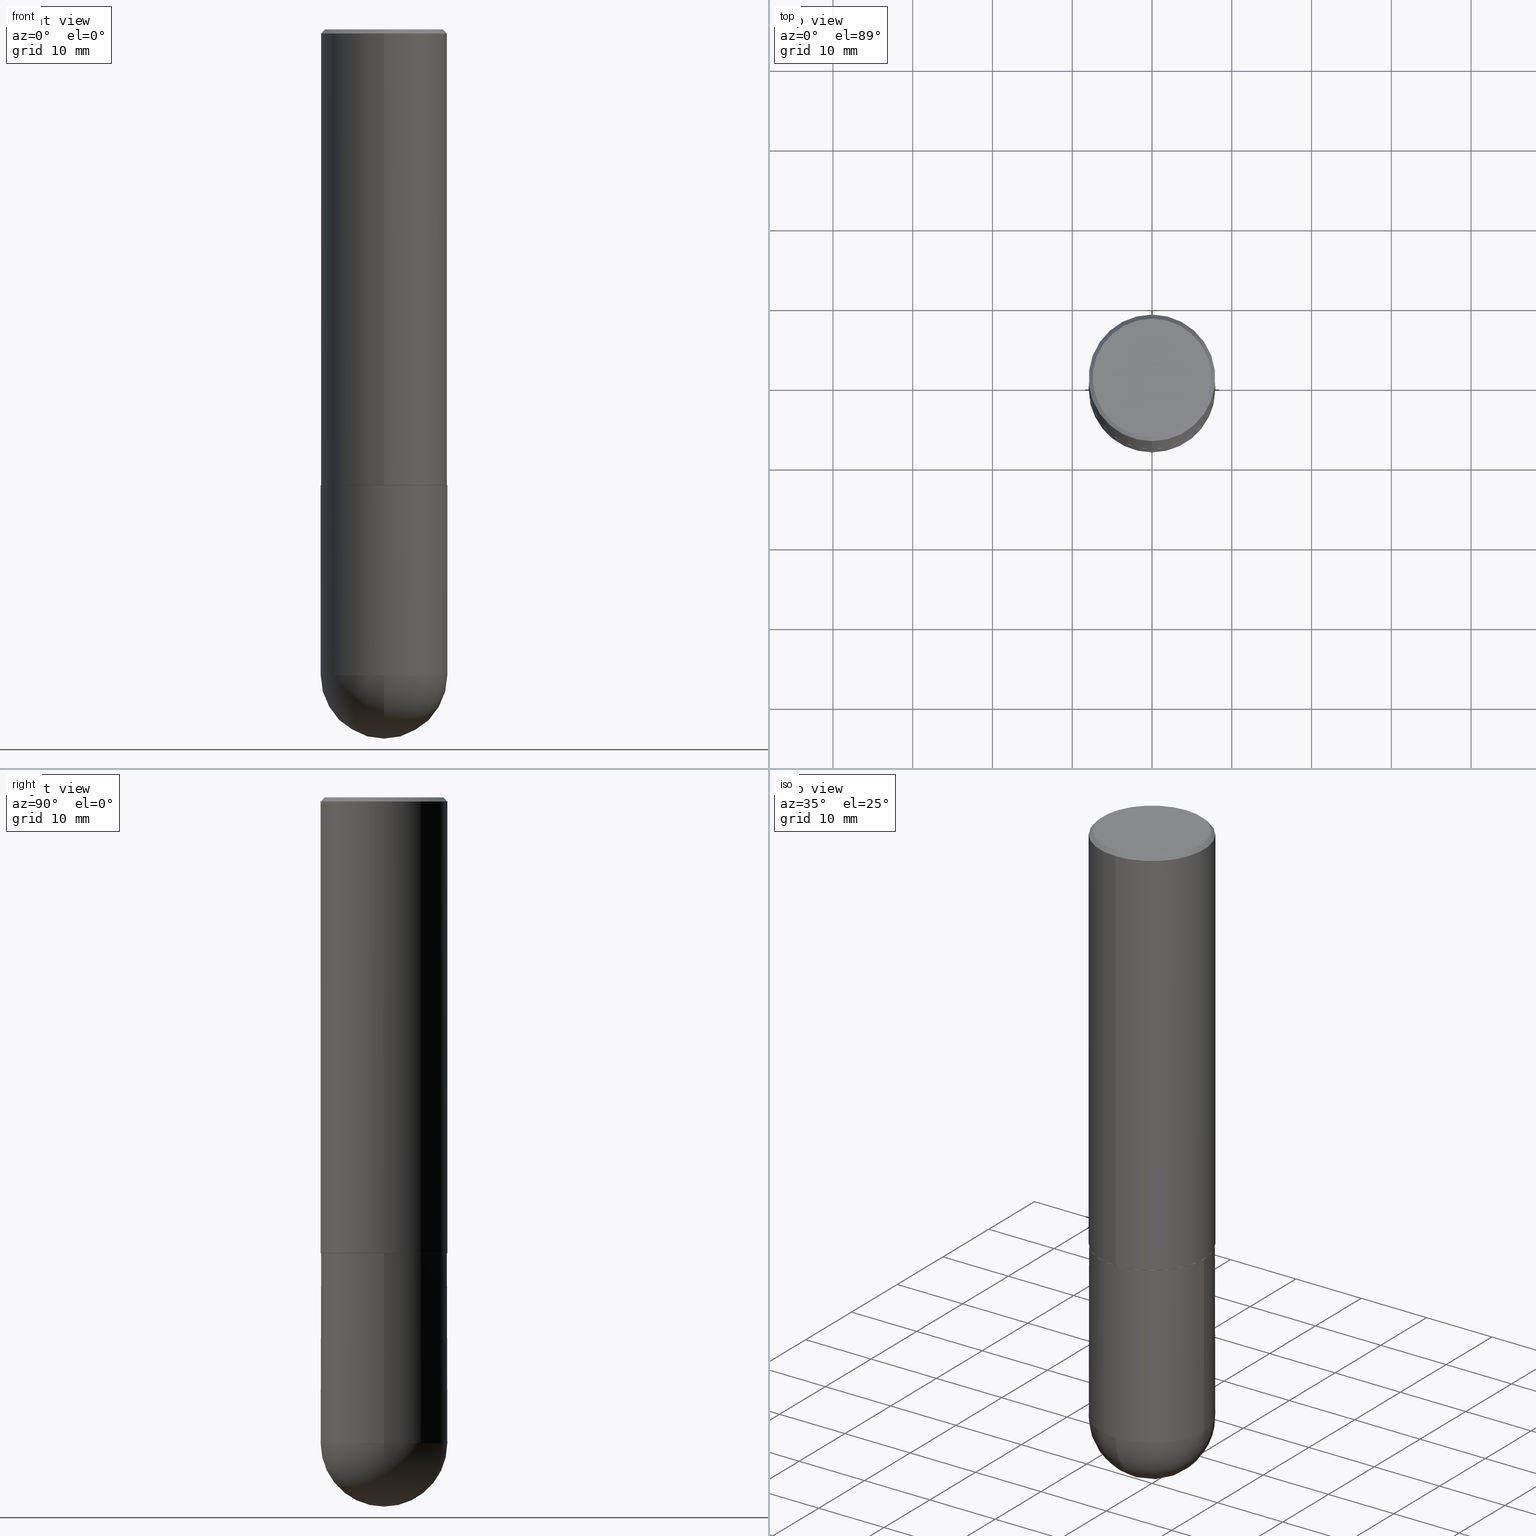
[diagram: canonical four-view strip — front | top / right | iso, engineering-drawing reading convention]
A machine part, canonical four-view strip (front | top / right | iso — engineering-drawing reading convention). The complete STEP part file that produces these views, byte-faithful:
ISO-10303-21;
HEADER;
FILE_DESCRIPTION (( 'STEP AP203' ),
    '1' );
FILE_NAME ('36350.STEP',
    '2024-02-21T18:55:58',
    ( '' ),
    ( '' ),
    'SwSTEP 2.0',
    'SolidWorks 2023',
    '' );
FILE_SCHEMA (( 'CONFIG_CONTROL_DESIGN' ));
ENDSEC;

DATA;
#1 = CARTESIAN_POINT ( 'NONE',  ( -2.175192874099216718E-15, -0.3115000000000078817, -2.249999999999999112 ) ) ;
#2 = DIRECTION ( 'NONE',  ( -6.982962677686265922E-15, -1.000000000000000000, 3.491020497515737366E-15 ) ) ;
#3 = DIRECTION ( 'NONE',  ( 1.000000000000000000, -6.982962677686269077E-15, 0.000000000000000000 ) ) ;
#4 = CONICAL_SURFACE ( 'NONE', #109, 0.3125000000000001665, 0.7853981633974469467 ) ;
#5 = EDGE_CURVE ( 'NONE', #403, #271, #26, .T. ) ;
#6 = DIRECTION ( 'NONE',  ( 2.438088387897960049E-29, -3.491481338843145188E-15, -1.000000000000000000 ) ) ;
#7 = CARTESIAN_POINT ( 'NONE',  ( 7.463812041801236655E-29, -1.160327913570257494E-14, -3.187500000000000000 ) ) ;
#8 = EDGE_LOOP ( 'NONE', ( #281, #45, #245, #247 ) ) ;
#9 = SECURITY_CLASSIFICATION_LEVEL ( 'unclassified' ) ;
#10 = LOCAL_TIME ( 13, 55, 58.00000000000000000, #306 ) ;
#11 = FACE_OUTER_BOUND ( 'NONE', #337, .T. ) ;
#12 = ADVANCED_BREP_SHAPE_REPRESENTATION ( '36350', ( #28, #159, #340 ), #73 ) ;
#13 = APPLICATION_PROTOCOL_DEFINITION ( 'international standard', 'config_control_design', 1994, #161 ) ;
#14 = ORIENTED_EDGE ( 'NONE', *, *, #176, .F. ) ;
#15 = CALENDAR_DATE ( 2024, 21, 2 ) ;
#16 = ORIENTED_EDGE ( 'NONE', *, *, #260, .T. ) ;
#17 = EDGE_CURVE ( 'NONE', #136, #217, #318, .T. ) ;
#18 = PERSON_AND_ORGANIZATION ( #59, #48 ) ;
#19 = VECTOR ( 'NONE', #320, 39.37007874015748143 ) ;
#20 = CC_DESIGN_SECURITY_CLASSIFICATION ( #197, ( #285 ) ) ;
#21 = DATE_AND_TIME ( #55, #90 ) ;
#22 = DIRECTION ( 'NONE',  ( 2.445790609964098896E-29, -3.491020497515737760E-15, -1.000000000000000000 ) ) ;
#23 = DIRECTION ( 'NONE',  ( -6.982962677686265133E-15, -1.000000000000000000, 3.496765431890254947E-15 ) ) ;
#24 = ADVANCED_FACE ( 'NONE', ( #273 ), #123, .T. ) ;
#25 = DIRECTION ( 'NONE',  ( -2.445790609964098896E-29, 3.491020497515737760E-15, 1.000000000000000000 ) ) ;
#26 = CIRCLE ( 'NONE', #283, 0.3125000000000002776 ) ;
#27 = CIRCLE ( 'NONE', #239, 0.3125000000000000000 ) ;
#28 = MANIFOLD_SOLID_BREP ( 'Body-Move/Copy2[1]', #212 ) ;
#29 = DIRECTION ( 'NONE',  ( -4.937700262164378437E-15, -0.7071067811865208164, 0.7071067811865739960 ) ) ;
#30 = DIRECTION ( 'NONE',  ( -6.982962677686265922E-15, -1.000000000000000000, 3.496765431890253764E-15 ) ) ;
#31 = CARTESIAN_POINT ( 'NONE',  ( 6.296900960775503853E-46, -8.987936348817900663E-32, -2.574587102886920740E-17 ) ) ;
#32 = DIRECTION ( 'NONE',  ( 1.000000000000000000, -6.982962677686269077E-15, 0.000000000000000000 ) ) ;
#33 = PLANE ( 'NONE',  #57 ) ;
#34 = ORIENTED_EDGE ( 'NONE', *, *, #61, .T. ) ;
#35 = PLANE ( 'NONE',  #352 ) ;
#36 = ORIENTED_EDGE ( 'NONE', *, *, #295, .T. ) ;
#37 = CIRCLE ( 'NONE', #95, 0.3125000000000002776 ) ;
#38 = AXIS2_PLACEMENT_3D ( 'NONE', #172, #361, #32 ) ;
#39 = FACE_OUTER_BOUND ( 'NONE', #369, .T. ) ;
#40 = VERTEX_POINT ( 'NONE', #49 ) ;
#41 = UNCERTAINTY_MEASURE_WITH_UNIT (LENGTH_MEASURE( 1.000000000000000082E-05 ), #240, 'distance_accuracy_value', 'NONE');
#42 =( LENGTH_UNIT ( ) NAMED_UNIT ( * ) SI_UNIT ( $, .METRE. ) );
#43 = ORIENTED_EDGE ( 'NONE', *, *, #5, .T. ) ;
#44 = EDGE_CURVE ( 'NONE', #201, #393, #371, .T. ) ;
#45 = ORIENTED_EDGE ( 'NONE', *, *, #353, .T. ) ;
#46 = VECTOR ( 'NONE', #29, 39.37007874015748854 ) ;
#47 = CC_DESIGN_APPROVAL ( #362, ( #285 ) ) ;
#48 = ORGANIZATION ( 'UNSPECIFIED', 'UNSPECIFIED', '' ) ;
#49 = CARTESIAN_POINT ( 'NONE',  ( -0.3125000000000000000, -7.272018840729490833E-15, -3.187500000000000000 ) ) ;
#50 = COORDINATED_UNIVERSAL_TIME_OFFSET ( 5, 0, .BEHIND. ) ;
#51 = FACE_OUTER_BOUND ( 'NONE', #266, .T. ) ;
#52 = APPROVAL_ROLE ( '' ) ;
#53 = ADVANCED_FACE ( 'NONE', ( #51 ), #4, .T. ) ;
#54 = EDGE_LOOP ( 'NONE', ( #301, #405, #363, #215 ) ) ;
#55 = CALENDAR_DATE ( 2024, 21, 2 ) ;
#56 = CLOSED_SHELL ( 'NONE', ( #93, #401, #53, #89, #264, #169, #357, #350 ) ) ;
#57 = AXIS2_PLACEMENT_3D ( 'NONE', #171, #269, #2 ) ;
#58 = VERTEX_POINT ( 'NONE', #125 ) ;
#59 = PERSON ( 'UNSPECIFIED', 'UNSPECIFIED', 'UNSPECIFIED', ('UNSPECIFIED'), ('UNSPECIFIED'), ('UNSPECIFIED') ) ;
#60 = DIRECTION ( 'NONE',  ( -6.982962677686265922E-15, -1.000000000000000000, 3.496765431890253764E-15 ) ) ;
#61 = EDGE_CURVE ( 'NONE', #271, #40, #64, .T. ) ;
#62 = DIRECTION ( 'NONE',  ( -6.982962677686265922E-15, -1.000000000000000000, 3.507991003100177457E-15 ) ) ;
#63 = DIRECTION ( 'NONE',  ( -6.982962677686265922E-15, -1.000000000000000000, 3.491020497515737760E-15 ) ) ;
#64 = CIRCLE ( 'NONE', #86, 0.3125000000000000000 ) ;
#65 = CARTESIAN_POINT ( 'NONE',  ( -2.182175836776905099E-15, -0.3125000000000081601, -2.248999999999998778 ) ) ;
#66 = CARTESIAN_POINT ( 'NONE',  ( 5.503028872419222936E-29, -7.854796119410410552E-15, -2.250000000000000000 ) ) ;
#67 = DIRECTION ( 'NONE',  ( -2.445790609964098896E-29, 3.491020497515737760E-15, 1.000000000000000000 ) ) ;
#68 = VECTOR ( 'NONE', #98, 39.37007874015748143 ) ;
#69 = CARTESIAN_POINT ( 'NONE',  ( 2.220446049250314264E-15, 0.3125000000000002220, -1.090943905473668790E-15 ) ) ;
#70 = FACE_OUTER_BOUND ( 'NONE', #72, .T. ) ;
#71 = DIRECTION ( 'NONE',  ( -1.000000000000000000, 6.982962677686265922E-15, -4.876176775795935793E-29 ) ) ;
#72 = EDGE_LOOP ( 'NONE', ( #14, #146, #36, #158, #101 ) ) ;
#73 =( GEOMETRIC_REPRESENTATION_CONTEXT ( 3 ) GLOBAL_UNCERTAINTY_ASSIGNED_CONTEXT ( ( #41 ) ) GLOBAL_UNIT_ASSIGNED_CONTEXT ( ( #240, #152, #342 ) ) REPRESENTATION_CONTEXT ( 'NONE', 'WORKASPACE' ) );
#74 = CYLINDRICAL_SURFACE ( 'NONE', #255, 0.3125000000000002220 ) ;
#75 = EDGE_CURVE ( 'NONE', #121, #58, #270, .T. ) ;
#76 = ORIENTED_EDGE ( 'NONE', *, *, #44, .F. ) ;
#77 = DATE_AND_TIME ( #280, #10 ) ;
#78 = ORIENTED_EDGE ( 'NONE', *, *, #219, .F. ) ;
#79 = APPROVAL_PERSON_ORGANIZATION ( #375, #191, #314 ) ;
#80 = PERSON_AND_ORGANIZATION ( #59, #48 ) ;
#81 = VERTEX_POINT ( 'NONE', #190 ) ;
#82 = DATE_TIME_ROLE ( 'classification_date' ) ;
#83 = EDGE_LOOP ( 'NONE', ( #34, #175, #332, #310, #242 ) ) ;
#84 = PERSON_AND_ORGANIZATION ( #59, #48 ) ;
#85 = CARTESIAN_POINT ( 'NONE',  ( 7.463812041801236655E-29, -1.160327913570257494E-14, -3.187500000000000000 ) ) ;
#86 = AXIS2_PLACEMENT_3D ( 'NONE', #88, #272, #394 ) ;
#87 = LOCAL_TIME ( 13, 55, 58.00000000000000000, #50 ) ;
#88 = CARTESIAN_POINT ( 'NONE',  ( 7.794931819715121781E-29, -1.112909676756252622E-14, -3.187500000000000000 ) ) ;
#89 = ADVANCED_FACE ( 'NONE', ( #11 ), #100, .T. ) ;
#90 = LOCAL_TIME ( 13, 55, 58.00000000000000000, #185 ) ;
#91 = DIRECTION ( 'NONE',  ( 5.024295867787889629E-15, 0.7071067811865257013, 0.7071067811865691111 ) ) ;
#92 = CARTESIAN_POINT ( 'NONE',  ( 2.216893335571567797E-15, 0.3114999999999921720, -2.250000000000001332 ) ) ;
#93 = ADVANCED_FACE ( 'NONE', ( #406 ), #118, .T. ) ;
#94 = CARTESIAN_POINT ( 'NONE',  ( 7.794931819715121781E-29, -1.112909676756252622E-14, -3.187500000000000000 ) ) ;
#95 = AXIS2_PLACEMENT_3D ( 'NONE', #196, #349, #30 ) ;
#96 = DIRECTION ( 'NONE',  ( -6.982962677686265922E-15, -1.000000000000000000, 3.507991003100177457E-15 ) ) ;
#97 = PRODUCT ( '36350', '36350', '', ( #397 ) ) ;
#98 = DIRECTION ( 'NONE',  ( -2.445790609964098896E-29, 3.491020497515737366E-15, 1.000000000000000000 ) ) ;
#99 = CARTESIAN_POINT ( 'NONE',  ( -0.3125000000000000000, -7.272018840729487678E-15, -2.249999999999999556 ) ) ;
#100 = CONICAL_SURFACE ( 'NONE', #339, 0.3125000000000001665, 0.7853981633974469467 ) ;
#101 = ORIENTED_EDGE ( 'NONE', *, *, #229, .F. ) ;
#102 = AXIS2_PLACEMENT_3D ( 'NONE', #31, #131, #252 ) ;
#103 = CYLINDRICAL_SURFACE ( 'NONE', #148, 0.3125000000000000000 ) ;
#104 = ORIENTED_EDGE ( 'NONE', *, *, #132, .T. ) ;
#105 = DIRECTION ( 'NONE',  ( -1.000000000000000000, 6.982962677686265922E-15, -4.883557194083112901E-29 ) ) ;
#106 = EDGE_LOOP ( 'NONE', ( #360, #153 ) ) ;
#107 = EDGE_CURVE ( 'NONE', #330, #121, #354, .T. ) ;
#108 = DIRECTION ( 'NONE',  ( -6.982962677686265922E-15, -1.000000000000000000, 3.491020497515737760E-15 ) ) ;
#109 = AXIS2_PLACEMENT_3D ( 'NONE', #275, #22, #400 ) ;
#110 = CIRCLE ( 'NONE', #327, 0.3125000000000000000 ) ;
#111 = LENGTH_MEASURE_WITH_UNIT ( LENGTH_MEASURE( 0.02539999999999999897 ), #42 );
#112 = DIRECTION ( 'NONE',  ( 0.000000000000000000, 0.000000000000000000, 1.000000000000000000 ) ) ;
#113 = ORIENTED_EDGE ( 'NONE', *, *, #75, .F. ) ;
#114 = CC_DESIGN_PERSON_AND_ORGANIZATION_ASSIGNMENT ( #338, #246, ( #285 ) ) ;
#115 = APPROVAL_ROLE ( '' ) ;
#116 = EDGE_LOOP ( 'NONE', ( #184, #104, #186, #76 ) ) ;
#117 = EDGE_CURVE ( 'NONE', #241, #58, #165, .T. ) ;
#118 = CONICAL_SURFACE ( 'NONE', #398, 0.3114999999999999991, 0.7853981633974141952 ) ;
#119 = AXIS2_PLACEMENT_3D ( 'NONE', #359, #198, #231 ) ;
#120 = PERSON_AND_ORGANIZATION_ROLE ( 'creator' ) ;
#121 = VERTEX_POINT ( 'NONE', #65 ) ;
#122 = APPROVAL_STATUS ( 'not_yet_approved' ) ;
#123 = SPHERICAL_SURFACE ( 'NONE', #232, 0.3125000000000002776 ) ;
#124 = APPROVAL_DATE_TIME ( #21, #303 ) ;
#125 = CARTESIAN_POINT ( 'NONE',  ( 2.220446049250342269E-15, 0.3124999999999924505, -2.249000000000000998 ) ) ;
#126 = VECTOR ( 'NONE', #329, 39.37007874015748143 ) ;
#127 = CARTESIAN_POINT ( 'NONE',  ( -2.075300644325888676E-15, -0.2925000000000001488, 9.953776244944845689E-16 ) ) ;
#128 = CC_DESIGN_APPROVAL ( #303, ( #197 ) ) ;
#129 = CARTESIAN_POINT ( 'NONE',  ( 7.463812041801236655E-29, -1.160327913570257494E-14, -3.187500000000000000 ) ) ;
#130 = CC_DESIGN_DATE_AND_TIME_ASSIGNMENT ( #77, #82, ( #197 ) ) ;
#131 = DIRECTION ( 'NONE',  ( -2.445790609964098896E-29, 3.491020497515737760E-15, 1.000000000000000000 ) ) ;
#132 = EDGE_CURVE ( 'NONE', #58, #121, #37, .T. ) ;
#133 = DIRECTION ( 'NONE',  ( 1.000000000000000000, -6.982962677686269077E-15, 0.000000000000000000 ) ) ;
#134 = CARTESIAN_POINT ( 'NONE',  ( 2.213340621892766504E-15, 0.3114999999999921720, -2.250000000000001332 ) ) ;
#135 = FACE_OUTER_BOUND ( 'NONE', #8, .T. ) ;
#136 = VERTEX_POINT ( 'NONE', #412 ) ;
#137 = PLANE ( 'NONE',  #378 ) ;
#138 = ORIENTED_EDGE ( 'NONE', *, *, #410, .F. ) ;
#139 = CONICAL_SURFACE ( 'NONE', #243, 0.3114999999999999991, 0.7853981633974141952 ) ;
#140 = SPHERICAL_SURFACE ( 'NONE', #384, 0.3125000000000002776 ) ;
#141 = ORIENTED_EDGE ( 'NONE', *, *, #224, .T. ) ;
#142 = DIRECTION ( 'NONE',  ( 4.937700262164540942E-15, 0.7071067811865441310, -0.7071067811865509034 ) ) ;
#143 = VERTEX_POINT ( 'NONE', #127 ) ;
#144 = EDGE_CURVE ( 'NONE', #241, #330, #333, .T. ) ;
#145 = DIMENSIONAL_EXPONENTS ( 1.000000000000000000, 0.000000000000000000, 0.000000000000000000, 0.000000000000000000, 0.000000000000000000, 0.000000000000000000, 0.000000000000000000 ) ;
#146 = ORIENTED_EDGE ( 'NONE', *, *, #380, .T. ) ;
#147 = VECTOR ( 'NONE', #279, 39.37007874015748143 ) ;
#148 = AXIS2_PLACEMENT_3D ( 'NONE', #300, #296, #234 ) ;
#149 = CARTESIAN_POINT ( 'NONE',  ( 4.891581219928215448E-31, -6.982040995031500715E-17, -0.02000000000000007327 ) ) ;
#150 = APPROVAL_STATUS ( 'not_yet_approved' ) ;
#151 = CARTESIAN_POINT ( 'NONE',  ( 0.3125000000000000000, -2.182175836776958347E-15, 1.523805242436230075E-29 ) ) ;
#152 =( NAMED_UNIT ( * ) PLANE_ANGLE_UNIT ( ) SI_UNIT ( $, .RADIAN. ) );
#153 = ORIENTED_EDGE ( 'NONE', *, *, #229, .T. ) ;
#154 = AXIS2_PLACEMENT_3D ( 'NONE', #66, #383, #96 ) ;
#155 = PERSON_AND_ORGANIZATION_ROLE ( 'design_owner' ) ;
#156 = ORIENTED_EDGE ( 'NONE', *, *, #237, .F. ) ;
#157 = DATE_AND_TIME ( #370, #335 ) ;
#158 = ORIENTED_EDGE ( 'NONE', *, *, #17, .T. ) ;
#159 = MANIFOLD_SOLID_BREP ( 'Body-Move/Copy2[2]', #56 ) ;
#160 = FACE_OUTER_BOUND ( 'NONE', #116, .T. ) ;
#161 = APPLICATION_CONTEXT ( 'configuration controlled 3d designs of mechanical parts and assemblies' ) ;
#162 = CIRCLE ( 'NONE', #204, 0.3125000000000000000 ) ;
#163 = LINE ( 'NONE', #287, #19 ) ;
#164 = CC_DESIGN_PERSON_AND_ORGANIZATION_ASSIGNMENT ( #18, #218, ( #285 ) ) ;
#165 = LINE ( 'NONE', #134, #276 ) ;
#166 = DIRECTION ( 'NONE',  ( 2.445790609964098896E-29, -3.491020497515737760E-15, -1.000000000000000000 ) ) ;
#167 = LINE ( 'NONE', #253, #408 ) ;
#168 = APPROVAL_PERSON_ORGANIZATION ( #207, #362, #115 ) ;
#169 = ADVANCED_FACE ( 'NONE', ( #228 ), #139, .T. ) ;
#170 = DIRECTION ( 'NONE',  ( 6.982962677686265922E-15, 1.000000000000000000, -3.496765431890253764E-15 ) ) ;
#171 = CARTESIAN_POINT ( 'NONE',  ( 5.503028872419221815E-29, -7.854796119410408975E-15, -2.249999999999999556 ) ) ;
#172 = CARTESIAN_POINT ( 'NONE',  ( 7.794931819715121781E-29, -1.112909676756252622E-14, -3.187500000000000000 ) ) ;
#173 = AXIS2_PLACEMENT_3D ( 'NONE', #225, #67, #23 ) ;
#174 = FACE_OUTER_BOUND ( 'NONE', #259, .T. ) ;
#175 = ORIENTED_EDGE ( 'NONE', *, *, #176, .T. ) ;
#176 = EDGE_CURVE ( 'NONE', #40, #299, #163, .T. ) ;
#177 = CYLINDRICAL_SURFACE ( 'NONE', #119, 0.3125000000000000000 ) ;
#178 = ORIENTED_EDGE ( 'NONE', *, *, #224, .F. ) ;
#179 = ORIENTED_EDGE ( 'NONE', *, *, #193, .T. ) ;
#180 = CIRCLE ( 'NONE', #262, 0.2925000000000001488 ) ;
#181 = PERSON_AND_ORGANIZATION ( #59, #48 ) ;
#182 = DIRECTION ( 'NONE',  ( -6.982962677686265133E-15, -1.000000000000000000, 3.496765431890254947E-15 ) ) ;
#183 = PERSON_AND_ORGANIZATION_ROLE ( 'classification_officer' ) ;
#184 = ORIENTED_EDGE ( 'NONE', *, *, #353, .F. ) ;
#185 = COORDINATED_UNIVERSAL_TIME_OFFSET ( 5, 0, .BEHIND. ) ;
#186 = ORIENTED_EDGE ( 'NONE', *, *, #187, .T. ) ;
#187 = EDGE_CURVE ( 'NONE', #121, #393, #286, .T. ) ;
#188 = CIRCLE ( 'NONE', #173, 0.3125000000000001665 ) ;
#189 = ORIENTED_EDGE ( 'NONE', *, *, #210, .F. ) ;
#190 = CARTESIAN_POINT ( 'NONE',  ( 2.112346210000096627E-15, 0.2925000000000001488, -1.046869366552222971E-15 ) ) ;
#191 = APPROVAL ( #150, 'UNSPECIFIED' ) ;
#192 = DIRECTION ( 'NONE',  ( -2.445790609964098896E-29, 3.491020497515737760E-15, 1.000000000000000000 ) ) ;
#193 = EDGE_CURVE ( 'NONE', #330, #241, #284, .T. ) ;
#194 = DIRECTION ( 'NONE',  ( 1.000000000000000000, -6.982962677686269077E-15, 0.000000000000000000 ) ) ;
#195 = DIRECTION ( 'NONE',  ( 6.982962677686265133E-15, 1.000000000000000000, -3.496765431890254947E-15 ) ) ;
#196 = CARTESIAN_POINT ( 'NONE',  ( 5.500583081809257409E-29, -7.851305098912893929E-15, -2.248999999999999666 ) ) ;
#197 = SECURITY_CLASSIFICATION ( '', '', #9 ) ;
#198 = DIRECTION ( 'NONE',  ( -2.445468806185136597E-29, 3.491481338843145583E-15, 1.000000000000000000 ) ) ;
#199 = CARTESIAN_POINT ( 'NONE',  ( 7.794931819715121781E-29, -1.112909676756252622E-14, -3.187500000000000000 ) ) ;
#200 = CC_DESIGN_PERSON_AND_ORGANIZATION_ASSIGNMENT ( #181, #183, ( #197 ) ) ;
#201 = VERTEX_POINT ( 'NONE', #351 ) ;
#202 = CARTESIAN_POINT ( 'NONE',  ( 2.182175836776959530E-15, 0.3125000000000000555, -0.02000000000000116615 ) ) ;
#203 = EDGE_LOOP ( 'NONE', ( #249, #206, #307, #233 ) ) ;
#204 = AXIS2_PLACEMENT_3D ( 'NONE', #319, #386, #194 ) ;
#205 = DIRECTION ( 'NONE',  ( -6.982962677686265922E-15, -1.000000000000000000, 3.491020497515737760E-15 ) ) ;
#206 = ORIENTED_EDGE ( 'NONE', *, *, #210, .T. ) ;
#207 = PERSON_AND_ORGANIZATION ( #59, #48 ) ;
#208 = ORIENTED_EDGE ( 'NONE', *, *, #117, .T. ) ;
#209 = EDGE_CURVE ( 'NONE', #217, #299, #110, .T. ) ;
#210 = EDGE_CURVE ( 'NONE', #403, #211, #347, .T. ) ;
#211 = VERTEX_POINT ( 'NONE', #355 ) ;
#212 = CLOSED_SHELL ( 'NONE', ( #367, #382, #24, #312, #289 ) ) ;
#213 = AXIS2_PLACEMENT_3D ( 'NONE', #94, #381, #356 ) ;
#214 = PERSON_AND_ORGANIZATION ( #59, #48 ) ;
#215 = ORIENTED_EDGE ( 'NONE', *, *, #132, .F. ) ;
#216 = APPROVAL_STATUS ( 'not_yet_approved' ) ;
#217 = VERTEX_POINT ( 'NONE', #385 ) ;
#218 = PERSON_AND_ORGANIZATION_ROLE ( 'creator' ) ;
#219 = EDGE_CURVE ( 'NONE', #81, #143, #316, .T. ) ;
#220 = CARTESIAN_POINT ( 'NONE',  ( 7.463812041801236655E-29, -1.160327913570257494E-14, -3.187500000000000000 ) ) ;
#221 = CARTESIAN_POINT ( 'NONE',  ( 5.500583081809257409E-29, -7.851305098912893929E-15, -2.248999999999999666 ) ) ;
#222 = CC_DESIGN_PERSON_AND_ORGANIZATION_ASSIGNMENT ( #214, #120, ( #274 ) ) ;
#223 = CARTESIAN_POINT ( 'NONE',  ( 5.503028872419222936E-29, -7.854796119410410552E-15, -2.250000000000000000 ) ) ;
#224 = EDGE_CURVE ( 'NONE', #143, #393, #167, .T. ) ;
#225 = CARTESIAN_POINT ( 'NONE',  ( 4.891581219928215448E-31, -6.982040995031500715E-17, -0.02000000000000007327 ) ) ;
#226 = CIRCLE ( 'NONE', #38, 0.3125000000000000000 ) ;
#227 = DIRECTION ( 'NONE',  ( -2.445790609964098896E-29, 3.491020497515737760E-15, 1.000000000000000000 ) ) ;
#228 = FACE_OUTER_BOUND ( 'NONE', #54, .T. ) ;
#229 = EDGE_CURVE ( 'NONE', #299, #217, #162, .T. ) ;
#230 = DIRECTION ( 'NONE',  ( -2.445468806185136597E-29, 3.491481338843145583E-15, 1.000000000000000000 ) ) ;
#231 = DIRECTION ( 'NONE',  ( 1.000000000000000000, -6.982962677686266711E-15, 4.876176775795936353E-29 ) ) ;
#232 = AXIS2_PLACEMENT_3D ( 'NONE', #220, #346, #372 ) ;
#233 = ORIENTED_EDGE ( 'NONE', *, *, #61, .F. ) ;
#234 = DIRECTION ( 'NONE',  ( 1.000000000000000000, -6.982962677686266711E-15, 4.876176775795936353E-29 ) ) ;
#235 = ORIENTED_EDGE ( 'NONE', *, *, #295, .F. ) ;
#236 = LINE ( 'NONE', #202, #291 ) ;
#237 = EDGE_CURVE ( 'NONE', #136, #271, #277, .T. ) ;
#238 = CARTESIAN_POINT ( 'NONE',  ( 6.296900960775503853E-46, -8.987936348817900663E-32, -2.574587102886920740E-17 ) ) ;
#239 = AXIS2_PLACEMENT_3D ( 'NONE', #199, #390, #3 ) ;
#240 =( CONVERSION_BASED_UNIT ( 'INCH', #111 ) LENGTH_UNIT ( ) NAMED_UNIT ( #145 ) );
#241 = VERTEX_POINT ( 'NONE', #92 ) ;
#242 = ORIENTED_EDGE ( 'NONE', *, *, #237, .T. ) ;
#243 = AXIS2_PLACEMENT_3D ( 'NONE', #223, #25, #62 ) ;
#244 = APPROVAL_DATE_TIME ( #345, #362 ) ;
#245 = ORIENTED_EDGE ( 'NONE', *, *, #260, .F. ) ;
#246 = PERSON_AND_ORGANIZATION_ROLE ( 'design_supplier' ) ;
#247 = ORIENTED_EDGE ( 'NONE', *, *, #187, .F. ) ;
#248 = SHAPE_DEFINITION_REPRESENTATION ( #326, #12 ) ;
#249 = ORIENTED_EDGE ( 'NONE', *, *, #5, .F. ) ;
#250 = APPROVAL_PERSON_ORGANIZATION ( #84, #303, #52 ) ;
#251 = CARTESIAN_POINT ( 'NONE',  ( 0.000000000000000000, 0.000000000000000000, 0.000000000000000000 ) ) ;
#252 = DIRECTION ( 'NONE',  ( -6.982962677686265922E-15, -1.000000000000000000, 3.491020497515737760E-15 ) ) ;
#253 = CARTESIAN_POINT ( 'NONE',  ( -2.143905624303604008E-15, -0.3125000000000002220, -0.01999999999999898040 ) ) ;
#254 = CC_DESIGN_PERSON_AND_ORGANIZATION_ASSIGNMENT ( #80, #155, ( #97 ) ) ;
#255 = AXIS2_PLACEMENT_3D ( 'NONE', #258, #267, #108 ) ;
#256 = DIRECTION ( 'NONE',  ( -1.000000000000000000, 7.105427357601001070E-15, -4.926315508542082329E-29 ) ) ;
#257 = DIRECTION ( 'NONE',  ( -4.851104656540957175E-15, -0.7071067811865490160, -0.7071067811865460184 ) ) ;
#258 = CARTESIAN_POINT ( 'NONE',  ( 0.000000000000000000, 0.000000000000000000, 0.000000000000000000 ) ) ;
#259 = EDGE_LOOP ( 'NONE', ( #374, #336 ) ) ;
#260 = EDGE_CURVE ( 'NONE', #393, #201, #188, .T. ) ;
#261 = CARTESIAN_POINT ( 'NONE',  ( 2.182175836777013173E-15, 0.3124999999999921729, -2.250000000000000888 ) ) ;
#262 = AXIS2_PLACEMENT_3D ( 'NONE', #238, #293, #205 ) ;
#263 = ORIENTED_EDGE ( 'NONE', *, *, #219, .T. ) ;
#264 = ADVANCED_FACE ( 'NONE', ( #160 ), #282, .T. ) ;
#265 = FACE_OUTER_BOUND ( 'NONE', #106, .T. ) ;
#266 = EDGE_LOOP ( 'NONE', ( #138, #141, #16, #268 ) ) ;
#267 = DIRECTION ( 'NONE',  ( -2.445790609964098896E-29, 3.491020497515737760E-15, 1.000000000000000000 ) ) ;
#268 = ORIENTED_EDGE ( 'NONE', *, *, #391, .F. ) ;
#269 = DIRECTION ( 'NONE',  ( -2.445790609964098896E-29, 3.491020497515737366E-15, 1.000000000000000000 ) ) ;
#270 = CIRCLE ( 'NONE', #407, 0.3125000000000002776 ) ;
#271 = VERTEX_POINT ( 'NONE', #331 ) ;
#272 = DIRECTION ( 'NONE',  ( -2.445468806185136597E-29, 3.491481338843145583E-15, 1.000000000000000000 ) ) ;
#273 = FACE_OUTER_BOUND ( 'NONE', #377, .T. ) ;
#274 = PRODUCT_DEFINITION ( 'UNKNOWN', '', #285, #302 ) ;
#275 = CARTESIAN_POINT ( 'NONE',  ( 4.891581219928215448E-31, -6.982040995031500715E-17, -0.02000000000000007327 ) ) ;
#276 = VECTOR ( 'NONE', #91, 39.37007874015748854 ) ;
#277 = CIRCLE ( 'NONE', #213, 0.3125000000000000000 ) ;
#278 = DATE_TIME_ROLE ( 'creation_date' ) ;
#279 = DIRECTION ( 'NONE',  ( -2.445468806185136877E-29, 3.491481338843145188E-15, 1.000000000000000000 ) ) ;
#280 = CALENDAR_DATE ( 2024, 21, 2 ) ;
#281 = ORIENTED_EDGE ( 'NONE', *, *, #75, .T. ) ;
#282 = CYLINDRICAL_SURFACE ( 'NONE', #399, 0.3125000000000002220 ) ;
#283 = AXIS2_PLACEMENT_3D ( 'NONE', #85, #315, #341 ) ;
#284 = CIRCLE ( 'NONE', #298, 0.3114999999999999991 ) ;
#285 = PRODUCT_DEFINITION_FORMATION_WITH_SPECIFIED_SOURCE ( 'ANY', '', #97, .NOT_KNOWN. ) ;
#286 = LINE ( 'NONE', #323, #68 ) ;
#287 = CARTESIAN_POINT ( 'NONE',  ( -0.3125000000000000000, 2.220446049250313081E-15, -1.537167215704658232E-29 ) ) ;
#288 = CARTESIAN_POINT ( 'NONE',  ( 5.503028872419222936E-29, -7.854796119410410552E-15, -2.250000000000000000 ) ) ;
#289 = ADVANCED_FACE ( 'NONE', ( #70 ), #177, .T. ) ;
#290 = AXIS2_PLACEMENT_3D ( 'NONE', #343, #396, #182 ) ;
#291 = VECTOR ( 'NONE', #142, 39.37007874015748143 ) ;
#292 = DIRECTION ( 'NONE',  ( -7.105427357601000281E-15, -1.000000000000000000, 0.000000000000000000 ) ) ;
#293 = DIRECTION ( 'NONE',  ( -2.445790609964098896E-29, 3.491020497515737760E-15, 1.000000000000000000 ) ) ;
#294 = CC_DESIGN_DATE_AND_TIME_ASSIGNMENT ( #395, #278, ( #274 ) ) ;
#295 = EDGE_CURVE ( 'NONE', #211, #136, #27, .T. ) ;
#296 = DIRECTION ( 'NONE',  ( -2.445468806185136597E-29, 3.491481338843145583E-15, 1.000000000000000000 ) ) ;
#297 = CARTESIAN_POINT ( 'NONE',  ( 2.042516583223233723E-15, 0.2925000000000001488, -1.033996431037788420E-15 ) ) ;
#298 = AXIS2_PLACEMENT_3D ( 'NONE', #288, #192, #325 ) ;
#299 = VERTEX_POINT ( 'NONE', #99 ) ;
#300 = CARTESIAN_POINT ( 'NONE',  ( 0.000000000000000000, 0.000000000000000000, 0.000000000000000000 ) ) ;
#301 = ORIENTED_EDGE ( 'NONE', *, *, #117, .F. ) ;
#302 = DESIGN_CONTEXT ( 'detailed design', #161, 'design' ) ;
#303 = APPROVAL ( #216, 'UNSPECIFIED' ) ;
#304 = DIRECTION ( 'NONE',  ( 6.982962677686265922E-15, 1.000000000000000000, -3.491020497515737366E-15 ) ) ;
#305 = EDGE_LOOP ( 'NONE', ( #179, #208, #113, #344 ) ) ;
#306 = COORDINATED_UNIVERSAL_TIME_OFFSET ( 5, 0, .BEHIND. ) ;
#307 = ORIENTED_EDGE ( 'NONE', *, *, #380, .F. ) ;
#308 = AXIS2_PLACEMENT_3D ( 'NONE', #129, #256, #292 ) ;
#309 = DIRECTION ( 'NONE',  ( 1.000000000000000000, 0.000000000000000000, 0.000000000000000000 ) ) ;
#310 = ORIENTED_EDGE ( 'NONE', *, *, #17, .F. ) ;
#311 = CARTESIAN_POINT ( 'NONE',  ( 0.000000000000000000, 0.000000000000000000, 0.000000000000000000 ) ) ;
#312 = ADVANCED_FACE ( 'NONE', ( #265 ), #137, .F. ) ;
#313 = ORIENTED_EDGE ( 'NONE', *, *, #44, .T. ) ;
#314 = APPROVAL_ROLE ( '' ) ;
#315 = DIRECTION ( 'NONE',  ( 1.000000000000000000, -6.982962677686265922E-15, 4.883557194083112340E-29 ) ) ;
#316 = CIRCLE ( 'NONE', #102, 0.2925000000000001488 ) ;
#317 = CALENDAR_DATE ( 2024, 21, 2 ) ;
#318 = LINE ( 'NONE', #151, #147 ) ;
#319 = CARTESIAN_POINT ( 'NONE',  ( 5.502304813916556222E-29, -7.855833012397076871E-15, -2.249999999999999556 ) ) ;
#320 = DIRECTION ( 'NONE',  ( -2.445468806185136877E-29, 3.491481338843145188E-15, 1.000000000000000000 ) ) ;
#321 = CC_DESIGN_APPROVAL ( #191, ( #274 ) ) ;
#322 = CARTESIAN_POINT ( 'NONE',  ( 5.503028872419222936E-29, -7.854796119410410552E-15, -2.250000000000000000 ) ) ;
#323 = CARTESIAN_POINT ( 'NONE',  ( -2.182175836776959530E-15, -0.3125000000000002220, 1.090943905473668790E-15 ) ) ;
#324 = APPLICATION_CONTEXT ( 'configuration controlled 3d designs of mechanical parts and assemblies' ) ;
#325 = DIRECTION ( 'NONE',  ( -6.982962677686265922E-15, -1.000000000000000000, 3.507991003100177457E-15 ) ) ;
#326 = PRODUCT_DEFINITION_SHAPE ( 'NONE', 'NONE',  #274 ) ;
#327 = AXIS2_PLACEMENT_3D ( 'NONE', #411, #230, #133 ) ;
#328 = DIRECTION ( 'NONE',  ( 2.445790609964098896E-29, -3.491020497515737366E-15, -1.000000000000000000 ) ) ;
#329 = DIRECTION ( 'NONE',  ( -2.445790609964098896E-29, 3.491020497515737366E-15, 1.000000000000000000 ) ) ;
#330 = VERTEX_POINT ( 'NONE', #366 ) ;
#331 = CARTESIAN_POINT ( 'NONE',  ( 2.182175836777035261E-15, 0.3124999999999887867, -3.187500000000000888 ) ) ;
#332 = ORIENTED_EDGE ( 'NONE', *, *, #209, .F. ) ;
#333 = CIRCLE ( 'NONE', #154, 0.3114999999999999991 ) ;
#334 = FACE_OUTER_BOUND ( 'NONE', #203, .T. ) ;
#335 = LOCAL_TIME ( 13, 55, 58.00000000000000000, #373 ) ;
#336 = ORIENTED_EDGE ( 'NONE', *, *, #144, .F. ) ;
#337 = EDGE_LOOP ( 'NONE', ( #178, #78, #389, #313 ) ) ;
#338 = PERSON_AND_ORGANIZATION ( #59, #48 ) ;
#339 = AXIS2_PLACEMENT_3D ( 'NONE', #149, #166, #195 ) ;
#340 = AXIS2_PLACEMENT_3D ( 'NONE', #311, #112, #309 ) ;
#341 = DIRECTION ( 'NONE',  ( 6.982962677686265922E-15, 1.000000000000000000, 0.000000000000000000 ) ) ;
#342 =( NAMED_UNIT ( * ) SI_UNIT ( $, .STERADIAN. ) SOLID_ANGLE_UNIT ( ) );
#343 = CARTESIAN_POINT ( 'NONE',  ( 4.891581219928215448E-31, -6.982040995031500715E-17, -0.02000000000000007327 ) ) ;
#344 = ORIENTED_EDGE ( 'NONE', *, *, #107, .F. ) ;
#345 = DATE_AND_TIME ( #15, #87 ) ;
#346 = DIRECTION ( 'NONE',  ( -1.000000000000000000, 6.982962677686265922E-15, -4.883557194083112901E-29 ) ) ;
#347 = CIRCLE ( 'NONE', #308, 0.3125000000000002776 ) ;
#348 = DIRECTION ( 'NONE',  ( -2.445790609964098896E-29, 3.491020497515737760E-15, 1.000000000000000000 ) ) ;
#349 = DIRECTION ( 'NONE',  ( -2.445790609964098896E-29, 3.491020497515737760E-15, 1.000000000000000000 ) ) ;
#350 = ADVANCED_FACE ( 'NONE', ( #39 ), #35, .F. ) ;
#351 = CARTESIAN_POINT ( 'NONE',  ( 2.182175836776959530E-15, 0.3125000000000000555, -0.02000000000000116615 ) ) ;
#352 = AXIS2_PLACEMENT_3D ( 'NONE', #297, #328, #304 ) ;
#353 = EDGE_CURVE ( 'NONE', #58, #201, #358, .T. ) ;
#354 = LINE ( 'NONE', #1, #46 ) ;
#355 = CARTESIAN_POINT ( 'NONE',  ( -2.220446049250237350E-15, -0.3125000000000114908, -3.187499999999998668 ) ) ;
#356 = DIRECTION ( 'NONE',  ( 1.000000000000000000, -6.982962677686269077E-15, 0.000000000000000000 ) ) ;
#357 = ADVANCED_FACE ( 'NONE', ( #174 ), #33, .F. ) ;
#358 = LINE ( 'NONE', #69, #126 ) ;
#359 = CARTESIAN_POINT ( 'NONE',  ( 0.000000000000000000, 0.000000000000000000, 0.000000000000000000 ) ) ;
#360 = ORIENTED_EDGE ( 'NONE', *, *, #209, .T. ) ;
#361 = DIRECTION ( 'NONE',  ( -2.445468806185136597E-29, 3.491481338843145583E-15, 1.000000000000000000 ) ) ;
#362 = APPROVAL ( #122, 'UNSPECIFIED' ) ;
#363 = ORIENTED_EDGE ( 'NONE', *, *, #107, .T. ) ;
#364 = CARTESIAN_POINT ( 'NONE',  ( 8.241383017002520278E-29, -1.267523194785438148E-14, -3.500000000000000444 ) ) ;
#365 = LOCAL_TIME ( 13, 55, 58.00000000000000000, #368 ) ;
#366 = CARTESIAN_POINT ( 'NONE',  ( -2.175192874099216718E-15, -0.3115000000000078817, -2.249999999999999112 ) ) ;
#367 = ADVANCED_FACE ( 'NONE', ( #388 ), #103, .T. ) ;
#368 = COORDINATED_UNIVERSAL_TIME_OFFSET ( 5, 0, .BEHIND. ) ;
#369 = EDGE_LOOP ( 'NONE', ( #263, #376 ) ) ;
#370 = CALENDAR_DATE ( 2024, 21, 2 ) ;
#371 = CIRCLE ( 'NONE', #290, 0.3125000000000001665 ) ;
#372 = DIRECTION ( 'NONE',  ( 6.982962677686265922E-15, 1.000000000000000000, -3.496765431890253764E-15 ) ) ;
#373 = COORDINATED_UNIVERSAL_TIME_OFFSET ( 5, 0, .BEHIND. ) ;
#374 = ORIENTED_EDGE ( 'NONE', *, *, #193, .F. ) ;
#375 = PERSON_AND_ORGANIZATION ( #59, #48 ) ;
#376 = ORIENTED_EDGE ( 'NONE', *, *, #410, .T. ) ;
#377 = EDGE_LOOP ( 'NONE', ( #189, #43, #156, #235 ) ) ;
#378 = AXIS2_PLACEMENT_3D ( 'NONE', #261, #6, #71 ) ;
#379 = DIRECTION ( 'NONE',  ( -2.445790609964098896E-29, 3.491020497515737760E-15, 1.000000000000000000 ) ) ;
#380 = EDGE_CURVE ( 'NONE', #40, #211, #226, .T. ) ;
#381 = DIRECTION ( 'NONE',  ( -2.445468806185136597E-29, 3.491481338843145583E-15, 1.000000000000000000 ) ) ;
#382 = ADVANCED_FACE ( 'NONE', ( #334 ), #140, .T. ) ;
#383 = DIRECTION ( 'NONE',  ( -2.445790609964098896E-29, 3.491020497515737760E-15, 1.000000000000000000 ) ) ;
#384 = AXIS2_PLACEMENT_3D ( 'NONE', #7, #105, #170 ) ;
#385 = CARTESIAN_POINT ( 'NONE',  ( 0.3125000000000000000, -1.003800884917403522E-14, -2.249999999999999556 ) ) ;
#386 = DIRECTION ( 'NONE',  ( -2.445468806185136597E-29, 3.491481338843145583E-15, 1.000000000000000000 ) ) ;
#387 = PRODUCT_RELATED_PRODUCT_CATEGORY ( 'detail', '', ( #97 ) ) ;
#388 = FACE_OUTER_BOUND ( 'NONE', #83, .T. ) ;
#389 = ORIENTED_EDGE ( 'NONE', *, *, #391, .T. ) ;
#390 = DIRECTION ( 'NONE',  ( -2.445468806185136597E-29, 3.491481338843145583E-15, 1.000000000000000000 ) ) ;
#391 = EDGE_CURVE ( 'NONE', #81, #201, #236, .T. ) ;
#392 = CARTESIAN_POINT ( 'NONE',  ( -2.143905624303604008E-15, -0.3125000000000002220, -0.01999999999999898040 ) ) ;
#393 = VERTEX_POINT ( 'NONE', #392 ) ;
#394 = DIRECTION ( 'NONE',  ( 1.000000000000000000, -6.982962677686269077E-15, 0.000000000000000000 ) ) ;
#395 = DATE_AND_TIME ( #317, #365 ) ;
#396 = DIRECTION ( 'NONE',  ( -2.445790609964098896E-29, 3.491020497515737760E-15, 1.000000000000000000 ) ) ;
#397 = MECHANICAL_CONTEXT ( 'NONE', #324, 'mechanical' ) ;
#398 = AXIS2_PLACEMENT_3D ( 'NONE', #322, #227, #409 ) ;
#399 = AXIS2_PLACEMENT_3D ( 'NONE', #251, #379, #63 ) ;
#400 = DIRECTION ( 'NONE',  ( 6.982962677686265133E-15, 1.000000000000000000, -3.496765431890254947E-15 ) ) ;
#401 = ADVANCED_FACE ( 'NONE', ( #135 ), #74, .T. ) ;
#402 = APPROVAL_DATE_TIME ( #157, #191 ) ;
#403 = VERTEX_POINT ( 'NONE', #364 ) ;
#404 = APPLICATION_PROTOCOL_DEFINITION ( 'international standard', 'config_control_design', 1994, #324 ) ;
#405 = ORIENTED_EDGE ( 'NONE', *, *, #144, .T. ) ;
#406 = FACE_OUTER_BOUND ( 'NONE', #305, .T. ) ;
#407 = AXIS2_PLACEMENT_3D ( 'NONE', #221, #348, #60 ) ;
#408 = VECTOR ( 'NONE', #257, 39.37007874015748143 ) ;
#409 = DIRECTION ( 'NONE',  ( -6.982962677686265922E-15, -1.000000000000000000, 3.507991003100177457E-15 ) ) ;
#410 = EDGE_CURVE ( 'NONE', #143, #81, #180, .T. ) ;
#411 = CARTESIAN_POINT ( 'NONE',  ( 5.502304813916556222E-29, -7.855833012397076871E-15, -2.249999999999999556 ) ) ;
#412 = CARTESIAN_POINT ( 'NONE',  ( 0.3125000000000000000, -1.167464072675676384E-14, -3.187500000000000000 ) ) ;
ENDSEC;
END-ISO-10303-21;
